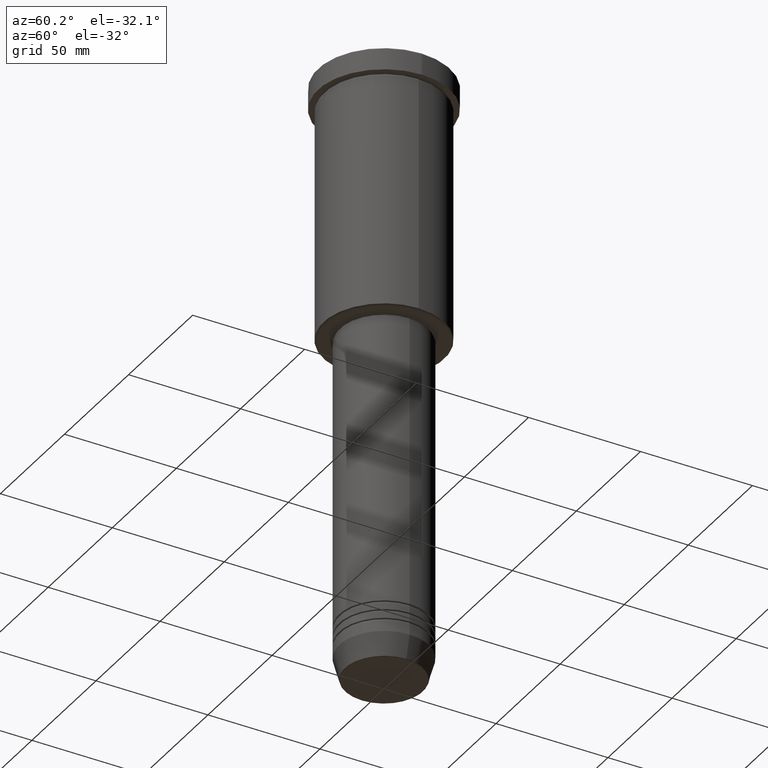
[diagram: clean part render]
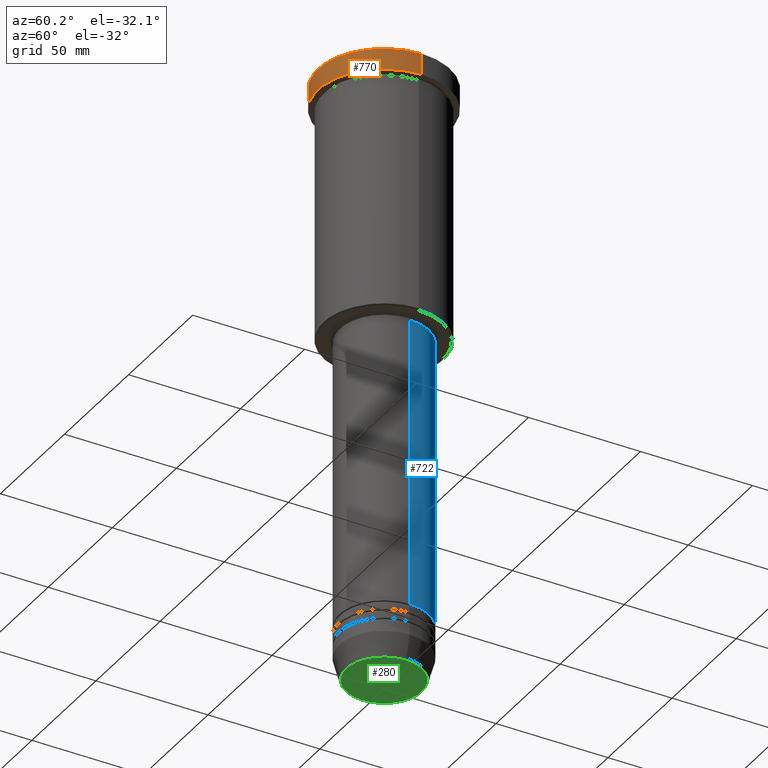
[diagram: same view with three faces highlighted in distinct colors, each labeled with its STEP entity id]
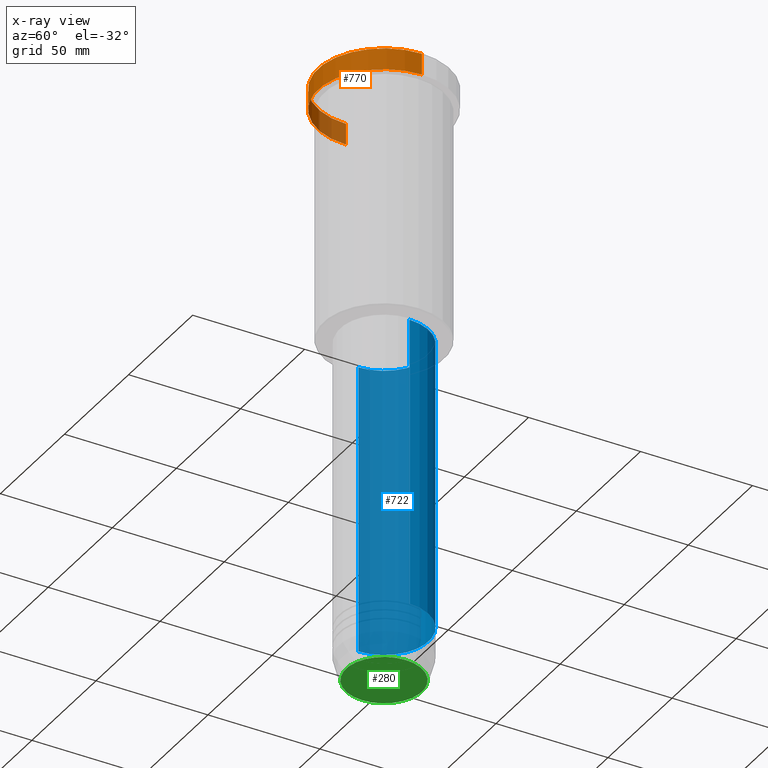
[diagram: x-ray of the same camera — body ghosted, the three highlighted faces saturated]
A machine part, auxiliary view with three faces highlighted in distinct colors.
The next image is the same camera in x-ray (body ghosted, the three faces saturated) — at least one of them is partly hidden behind the body in this view.
Their STEP definitions:

[orange] entity #770 — the highlighted cylindrical surface (partial cylindrical patch) has radius 29.5 mm, axis along (-0, -0, 1).
#11 = CARTESIAN_POINT ( 'NONE',  ( 0.000000000000000000, 0.000000000000000000, -9.999999999999992895 ) ) ;
#18 = VERTEX_POINT ( 'NONE', #1129 ) ;
#26 = EDGE_CURVE ( 'NONE', #1123, #18, #595, .T. ) ;
#139 = EDGE_CURVE ( 'NONE', #527, #925, #956, .T. ) ;
#158 = CARTESIAN_POINT ( 'NONE',  ( 0.000000000000000000, 0.000000000000000000, -0.5000000000000281997 ) ) ;
#225 = EDGE_CURVE ( 'NONE', #925, #18, #611, .T. ) ;
#228 = CARTESIAN_POINT ( 'NONE',  ( 29.50000000000000000, 0.000000000000000000, -9.999999999999992895 ) ) ;
#252 = DIRECTION ( 'NONE',  ( 1.000000000000000000, 0.000000000000000000, 0.000000000000000000 ) ) ;
#302 = ORIENTED_EDGE ( 'NONE', *, *, #225, .T. ) ;
#332 = CARTESIAN_POINT ( 'NONE',  ( -29.50000000000000000, 3.612708057484691604E-15, 0.000000000000000000 ) ) ;
#359 = CARTESIAN_POINT ( 'NONE',  ( 29.50000000000000000, 0.000000000000000000, 0.000000000000000000 ) ) ;
#365 = AXIS2_PLACEMENT_3D ( 'NONE', #158, #443, #252 ) ;
#372 = DIRECTION ( 'NONE',  ( 1.000000000000000000, 0.000000000000000000, 0.000000000000000000 ) ) ;
#443 = DIRECTION ( 'NONE',  ( 0.000000000000000000, 0.000000000000000000, -1.000000000000000000 ) ) ;
#463 = CARTESIAN_POINT ( 'NONE',  ( 0.000000000000000000, 0.000000000000000000, 0.000000000000000000 ) ) ;
#527 = VERTEX_POINT ( 'NONE', #228 ) ;
#540 = DIRECTION ( 'NONE',  ( 1.000000000000000000, 0.000000000000000000, 0.000000000000000000 ) ) ;
#545 = FACE_OUTER_BOUND ( 'NONE', #1163, .T. ) ;
#554 = ORIENTED_EDGE ( 'NONE', *, *, #26, .F. ) ;
#595 = LINE ( 'NONE', #332, #1055 ) ;
#611 = CIRCLE ( 'NONE', #365, 29.50000000000000000 ) ;
#635 = AXIS2_PLACEMENT_3D ( 'NONE', #11, #927, #540 ) ;
#666 = VECTOR ( 'NONE', #886, 1000.000000000000000 ) ;
#735 = DIRECTION ( 'NONE',  ( -0.000000000000000000, -0.000000000000000000, 1.000000000000000000 ) ) ;
#770 = ADVANCED_FACE ( 'NONE', ( #545 ), #1106, .T. ) ;
#776 = CARTESIAN_POINT ( 'NONE',  ( 29.50000000000000000, 0.000000000000000000, -0.5000000000000281997 ) ) ;
#796 = ORIENTED_EDGE ( 'NONE', *, *, #139, .T. ) ;
#805 = ORIENTED_EDGE ( 'NONE', *, *, #860, .T. ) ;
#860 = EDGE_CURVE ( 'NONE', #1123, #527, #947, .T. ) ;
#864 = DIRECTION ( 'NONE',  ( -0.000000000000000000, -0.000000000000000000, 1.000000000000000000 ) ) ;
#886 = DIRECTION ( 'NONE',  ( -0.000000000000000000, -0.000000000000000000, 1.000000000000000000 ) ) ;
#904 = CARTESIAN_POINT ( 'NONE',  ( -29.50000000000000000, 3.612708057484691604E-15, -9.999999999999992895 ) ) ;
#925 = VERTEX_POINT ( 'NONE', #776 ) ;
#927 = DIRECTION ( 'NONE',  ( -0.000000000000000000, -0.000000000000000000, 1.000000000000000000 ) ) ;
#947 = CIRCLE ( 'NONE', #635, 29.50000000000000000 ) ;
#956 = LINE ( 'NONE', #359, #666 ) ;
#1055 = VECTOR ( 'NONE', #864, 1000.000000000000000 ) ;
#1106 = CYLINDRICAL_SURFACE ( 'NONE', #1118, 29.50000000000000000 ) ;
#1118 = AXIS2_PLACEMENT_3D ( 'NONE', #463, #735, #372 ) ;
#1123 = VERTEX_POINT ( 'NONE', #904 ) ;
#1129 = CARTESIAN_POINT ( 'NONE',  ( -29.50000000000000000, 3.612708057484691604E-15, -0.5000000000000281997 ) ) ;
#1163 = EDGE_LOOP ( 'NONE', ( #554, #805, #796, #302 ) ) ;

[blue] entity #722 — the highlighted cylindrical surface (partial cylindrical patch) has radius 20 mm, axis along (-0, -0, 1).
#14 = VERTEX_POINT ( 'NONE', #858 ) ;
#45 = VERTEX_POINT ( 'NONE', #872 ) ;
#91 = VECTOR ( 'NONE', #255, 1000.000000000000000 ) ;
#96 = CARTESIAN_POINT ( 'NONE',  ( 19.99999999999999645, 0.000000000000000000, -117.0000000000000426 ) ) ;
#168 = DIRECTION ( 'NONE',  ( 1.000000000000000000, 0.000000000000000000, 0.000000000000000000 ) ) ;
#171 = CYLINDRICAL_SURFACE ( 'NONE', #1079, 19.99999999999999645 ) ;
#185 = EDGE_CURVE ( 'NONE', #14, #855, #705, .T. ) ;
#255 = DIRECTION ( 'NONE',  ( -0.000000000000000000, -0.000000000000000000, 1.000000000000000000 ) ) ;
#261 = LINE ( 'NONE', #433, #91 ) ;
#275 = AXIS2_PLACEMENT_3D ( 'NONE', #874, #544, #168 ) ;
#300 = ORIENTED_EDGE ( 'NONE', *, *, #185, .T. ) ;
#308 = AXIS2_PLACEMENT_3D ( 'NONE', #1162, #992, #699 ) ;
#329 = VECTOR ( 'NONE', #843, 1000.000000000000000 ) ;
#341 = ORIENTED_EDGE ( 'NONE', *, *, #1100, .F. ) ;
#356 = VERTEX_POINT ( 'NONE', #96 ) ;
#393 = EDGE_CURVE ( 'NONE', #14, #356, #1122, .T. ) ;
#433 = CARTESIAN_POINT ( 'NONE',  ( -19.99999999999999645, 2.449293598294706119E-15, 0.000000000000000000 ) ) ;
#442 = DIRECTION ( 'NONE',  ( 1.000000000000000000, 0.000000000000000000, 0.000000000000000000 ) ) ;
#466 = CIRCLE ( 'NONE', #275, 19.99999999999999645 ) ;
#534 = DIRECTION ( 'NONE',  ( -0.000000000000000000, -0.000000000000000000, 1.000000000000000000 ) ) ;
#544 = DIRECTION ( 'NONE',  ( -0.000000000000000000, -0.000000000000000000, 1.000000000000000000 ) ) ;
#606 = CARTESIAN_POINT ( 'NONE',  ( 0.000000000000000000, 0.000000000000000000, 0.000000000000000000 ) ) ;
#614 = EDGE_CURVE ( 'NONE', #855, #45, #261, .T. ) ;
#699 = DIRECTION ( 'NONE',  ( 1.000000000000000000, 0.000000000000000000, 0.000000000000000000 ) ) ;
#705 = CIRCLE ( 'NONE', #308, 20.00000000000000000 ) ;
#710 = ORIENTED_EDGE ( 'NONE', *, *, #393, .F. ) ;
#720 = ORIENTED_EDGE ( 'NONE', *, *, #614, .T. ) ;
#722 = ADVANCED_FACE ( 'NONE', ( #1159 ), #171, .T. ) ;
#823 = CARTESIAN_POINT ( 'NONE',  ( -20.00000000000000000, 2.449293598294706513E-15, -246.9999999999999147 ) ) ;
#837 = CARTESIAN_POINT ( 'NONE',  ( 19.99999999999999645, 0.000000000000000000, 0.000000000000000000 ) ) ;
#843 = DIRECTION ( 'NONE',  ( -0.000000000000000000, -0.000000000000000000, 1.000000000000000000 ) ) ;
#845 = EDGE_LOOP ( 'NONE', ( #300, #720, #341, #710 ) ) ;
#855 = VERTEX_POINT ( 'NONE', #823 ) ;
#858 = CARTESIAN_POINT ( 'NONE',  ( 20.00000000000000000, 0.000000000000000000, -246.9999999999999147 ) ) ;
#872 = CARTESIAN_POINT ( 'NONE',  ( -19.99999999999999645, 2.449293598294706119E-15, -117.0000000000000426 ) ) ;
#874 = CARTESIAN_POINT ( 'NONE',  ( 0.000000000000000000, 0.000000000000000000, -117.0000000000000426 ) ) ;
#992 = DIRECTION ( 'NONE',  ( -0.000000000000000000, -0.000000000000000000, 1.000000000000000000 ) ) ;
#1079 = AXIS2_PLACEMENT_3D ( 'NONE', #606, #534, #442 ) ;
#1100 = EDGE_CURVE ( 'NONE', #356, #45, #466, .T. ) ;
#1122 = LINE ( 'NONE', #837, #329 ) ;
#1159 = FACE_OUTER_BOUND ( 'NONE', #845, .T. ) ;
#1162 = CARTESIAN_POINT ( 'NONE',  ( 0.000000000000000000, 0.000000000000000000, -246.9999999999999147 ) ) ;

[green] entity #280 — the highlighted planar face has unit normal (0, -0, 1).
#17 = CIRCLE ( 'NONE', #728, 16.93684458169928675 ) ;
#54 = CARTESIAN_POINT ( 'NONE',  ( 0.000000000000000000, 0.000000000000000000, -271.0000000000000000 ) ) ;
#108 = DIRECTION ( 'NONE',  ( 0.000000000000000000, -0.000000000000000000, 1.000000000000000000 ) ) ;
#109 = CIRCLE ( 'NONE', #870, 16.93684458169928675 ) ;
#142 = DIRECTION ( 'NONE',  ( 0.000000000000000000, 0.000000000000000000, -1.000000000000000000 ) ) ;
#164 = CARTESIAN_POINT ( 'NONE',  ( 16.93684458169928675, 0.000000000000000000, -271.0000000000000000 ) ) ;
#203 = DIRECTION ( 'NONE',  ( 1.000000000000000000, 0.000000000000000000, 0.000000000000000000 ) ) ;
#248 = VERTEX_POINT ( 'NONE', #164 ) ;
#280 = ADVANCED_FACE ( 'NONE', ( #1113 ), #1107, .F. ) ;
#304 = DIRECTION ( 'NONE',  ( 1.000000000000000000, 0.000000000000000000, 0.000000000000000000 ) ) ;
#305 = CARTESIAN_POINT ( 'NONE',  ( 0.000000000000000000, 0.000000000000000000, -271.0000000000000000 ) ) ;
#389 = ORIENTED_EDGE ( 'NONE', *, *, #572, .T. ) ;
#453 = ORIENTED_EDGE ( 'NONE', *, *, #951, .T. ) ;
#572 = EDGE_CURVE ( 'NONE', #835, #248, #109, .T. ) ;
#645 = EDGE_LOOP ( 'NONE', ( #453, #389 ) ) ;
#647 = AXIS2_PLACEMENT_3D ( 'NONE', #751, #108, #203 ) ;
#728 = AXIS2_PLACEMENT_3D ( 'NONE', #54, #748, #304 ) ;
#748 = DIRECTION ( 'NONE',  ( 0.000000000000000000, 0.000000000000000000, -1.000000000000000000 ) ) ;
#751 = CARTESIAN_POINT ( 'NONE',  ( 0.000000000000000000, 0.000000000000000000, -271.0000000000000000 ) ) ;
#835 = VERTEX_POINT ( 'NONE', #1094 ) ;
#870 = AXIS2_PLACEMENT_3D ( 'NONE', #305, #142, #941 ) ;
#941 = DIRECTION ( 'NONE',  ( 1.000000000000000000, 0.000000000000000000, 0.000000000000000000 ) ) ;
#951 = EDGE_CURVE ( 'NONE', #248, #835, #17, .T. ) ;
#1094 = CARTESIAN_POINT ( 'NONE',  ( -16.93684458169928675, 2.103738199747889592E-15, -271.0000000000000000 ) ) ;
#1107 = PLANE ( 'NONE',  #647 ) ;
#1113 = FACE_OUTER_BOUND ( 'NONE', #645, .T. ) ;